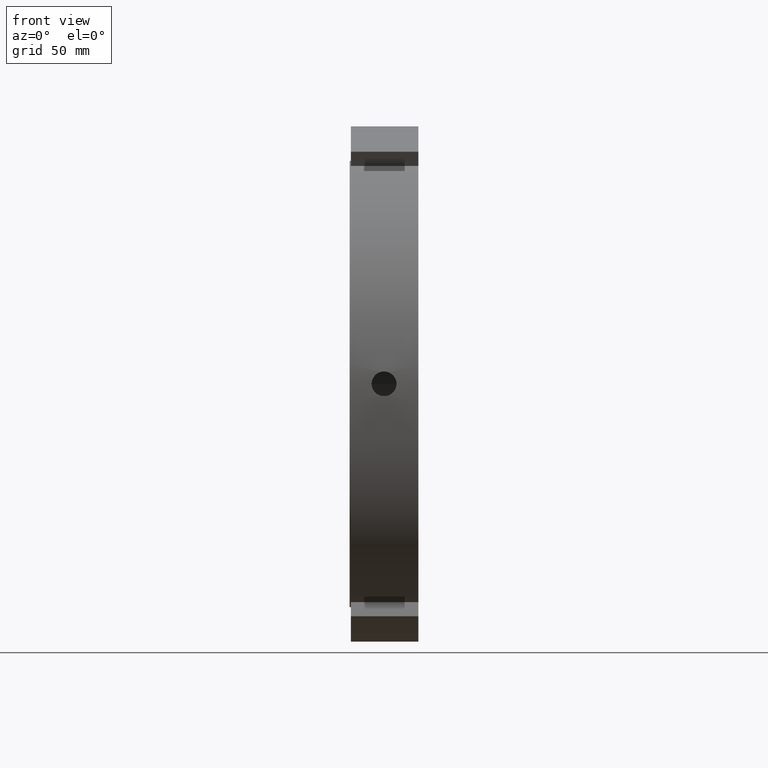
[diagram: clean part render]
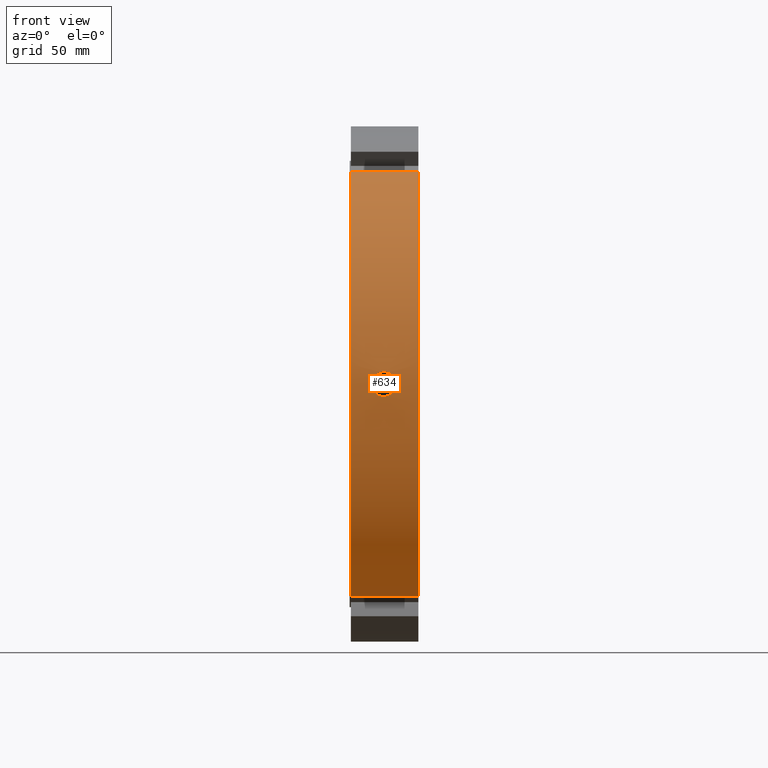
[diagram: same view with one face highlighted and labeled with its STEP entity id]
A machine part, front view. The second image highlights one B-rep face of the part: STEP entity #634.
In plain terms, the highlighted cylindrical surface (partial cylindrical patch) has radius 105 mm, axis along (1, 0, 0).
Its self-contained STEP definition (entity closure, byte-faithful):
#75=CARTESIAN_POINT('',(0.499999999999972,-59.275600491266481,-86.668351700028140));
#76=VERTEX_POINT('',#75);
#91=CARTESIAN_POINT('',(27.999999999999979,-59.275600491266481,-86.668351700028140));
#92=VERTEX_POINT('',#91);
#99=CARTESIAN_POINT('',(0.499999999999972,-59.275600491266474,-86.668351700028140));
#100=DIRECTION('',(1.0,0.0,0.0));
#101=VECTOR('',#100,27.500000000000007);
#102=LINE('',#99,#101);
#103=EDGE_CURVE('',#76,#92,#102,.T.);
#303=CARTESIAN_POINT('',(0.499999999999972,-59.275600491266410,86.668351700028182));
#304=VERTEX_POINT('',#303);
#313=CARTESIAN_POINT('',(27.999999999999979,-59.275600491266410,86.668351700028182));
#314=VERTEX_POINT('',#313);
#315=CARTESIAN_POINT('',(27.999999999999979,-59.275600491266410,86.668351700028197));
#316=DIRECTION('',(-1.0,0.0,0.0));
#317=VECTOR('',#316,27.500000000000007);
#318=LINE('',#315,#317);
#319=EDGE_CURVE('',#314,#304,#318,.T.);
#499=CARTESIAN_POINT('',(27.999999999999979,0.0,0.0));
#500=DIRECTION('',(1.0,0.0,0.0));
#501=DIRECTION('',(0.0,1.0,0.0));
#502=AXIS2_PLACEMENT_3D('',#499,#500,#501);
#503=CIRCLE('',#502,105.0);
#504=EDGE_CURVE('',#314,#92,#503,.T.);
#576=CARTESIAN_POINT('',(14.249999999999975,0.0,0.0));
#577=DIRECTION('',(1.0,0.0,0.0));
#578=DIRECTION('',(0.0,1.0,0.0));
#579=AXIS2_PLACEMENT_3D('',#576,#577,#578);
#580=CYLINDRICAL_SURFACE('',#579,105.0);
#581=ORIENTED_EDGE('',*,*,#103,.T.);
#582=ORIENTED_EDGE('',*,*,#504,.F.);
#583=ORIENTED_EDGE('',*,*,#319,.T.);
#584=CARTESIAN_POINT('',(0.499999999999972,0.0,0.0));
#585=DIRECTION('',(1.0,0.0,0.0));
#586=DIRECTION('',(0.0,1.0,0.0));
#587=AXIS2_PLACEMENT_3D('',#584,#585,#586);
#588=CIRCLE('',#587,105.0);
#589=EDGE_CURVE('',#304,#76,#588,.T.);
#590=ORIENTED_EDGE('',*,*,#589,.T.);
#591=EDGE_LOOP('',(#581,#582,#583,#590));
#592=FACE_OUTER_BOUND('',#591,.T.);
#593=CARTESIAN_POINT('',(13.999999999999979,-104.878344719012400,5.053000000000000));
#594=VERTEX_POINT('',#593);
#595=CARTESIAN_POINT('',(13.999999999999979,-104.878344719012400,5.053000000000000));
#596=CARTESIAN_POINT('',(14.634571136471465,-104.878344719012400,5.053000000000000));
#597=CARTESIAN_POINT('',(15.311372523950235,-104.884696503385600,4.926160746992009));
#598=CARTESIAN_POINT('',(16.556298304530198,-104.907647593431950,4.410453112567629));
#599=CARTESIAN_POINT('',(17.124431001535733,-104.923916576419430,4.021590129135494));
#600=CARTESIAN_POINT('',(18.021590047831666,-104.954463398360250,3.124431082839566));
#601=CARTESIAN_POINT('',(18.410453091665818,-104.970724158447960,2.556298348568645));
#602=CARTESIAN_POINT('',(18.926160779767745,-104.993656445939880,1.311372451247898));
#603=CARTESIAN_POINT('',(19.052999999999976,-105.0,0.634571021457217));
#604=CARTESIAN_POINT('',(19.052999999999976,-105.0,-0.634571021457216));
#605=CARTESIAN_POINT('',(18.926160779767745,-104.993656445939880,-1.311372451247897));
#606=CARTESIAN_POINT('',(18.410453091665818,-104.970724158447960,-2.556298348568644));
#607=CARTESIAN_POINT('',(18.021590047831666,-104.954463398360250,-3.124431082839565));
#608=CARTESIAN_POINT('',(17.124431001535736,-104.923916576419430,-4.021590129135494));
#609=CARTESIAN_POINT('',(16.556298304530198,-104.907647593431950,-4.410453112567629));
#610=CARTESIAN_POINT('',(15.311372523950235,-104.884696503385600,-4.926160746992009));
#611=CARTESIAN_POINT('',(14.634571136471466,-104.878344719012400,-5.053000000000000));
#612=CARTESIAN_POINT('',(13.365428863528495,-104.878344719012400,-5.053000000000000));
#613=CARTESIAN_POINT('',(12.688627476049723,-104.884696503385600,-4.926160746992009));
#614=CARTESIAN_POINT('',(11.443701695469761,-104.907647593431950,-4.410453112567629));
#615=CARTESIAN_POINT('',(10.875568998464225,-104.923916576419430,-4.021590129135494));
#616=CARTESIAN_POINT('',(9.978409952168297,-104.954463398360250,-3.124431082839566));
#617=CARTESIAN_POINT('',(9.589546908334141,-104.970724158447960,-2.556298348568646));
#618=CARTESIAN_POINT('',(9.073839220232214,-104.993656445939880,-1.311372451247898));
#619=CARTESIAN_POINT('',(8.946999999999980,-105.0,-0.634571021457217));
#620=CARTESIAN_POINT('',(8.946999999999980,-105.0,0.634571021457215));
#621=CARTESIAN_POINT('',(9.073839220232214,-104.993656445939880,1.311372451247898));
#622=CARTESIAN_POINT('',(9.589546908334139,-104.970724158447960,2.556298348568645));
#623=CARTESIAN_POINT('',(9.978409952168295,-104.954463398360250,3.124431082839565));
#624=CARTESIAN_POINT('',(10.875568998464223,-104.923916576419430,4.021590129135493));
#625=CARTESIAN_POINT('',(11.443701695469761,-104.907647593431950,4.410453112567629));
#626=CARTESIAN_POINT('',(12.688627476049723,-104.884696503385600,4.926160746992009));
#627=CARTESIAN_POINT('',(13.365428863528489,-104.878344719012400,5.053000000000000));
#628=CARTESIAN_POINT('',(13.999999999999977,-104.878344719012400,5.053000000000000));
#629=B_SPLINE_CURVE_WITH_KNOTS('',3,(#595,#596,#597,#598,#599,#600,#601,#602,#603,#604,#605,#606,#607,#608,#609,#610,#611,#612,#613,#614,#615,#616,#617,#618,#619,#620,#621,#622,#623,#624,#625,#626,#627,#628),.UNSPECIFIED.,.T.,.U.,(4,2,2,2,2,2,2,2,2,2,2,2,2,2,2,2,4),(0.0,0.190371340941446,0.380742681882892,0.571113988320056,0.761485294757221,0.951856601194386,1.142227907631551,1.332599248572997,1.522970589514443,1.713341930455889,1.903713271397335,2.094084577834500,2.284455884271665,2.474827190708830,2.665198497145994,2.855569838087440,3.045941179028886),.UNSPECIFIED.);
#630=EDGE_CURVE('',#594,#594,#629,.T.);
#631=ORIENTED_EDGE('',*,*,#630,.T.);
#632=EDGE_LOOP('',(#631));
#633=FACE_BOUND('',#632,.T.);
#634=ADVANCED_FACE('',(#592,#633),#580,.T.);